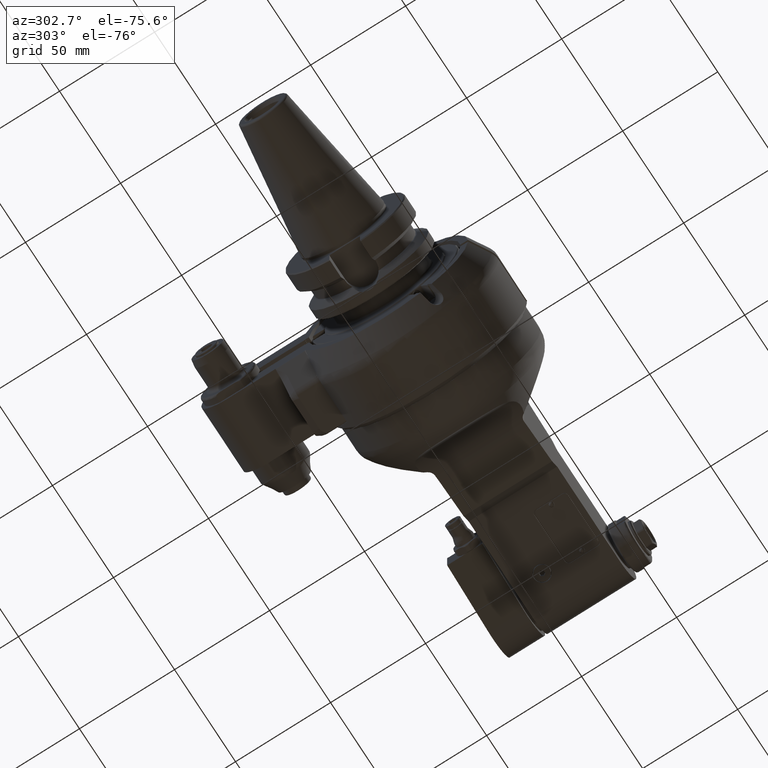
[diagram: clean part render]
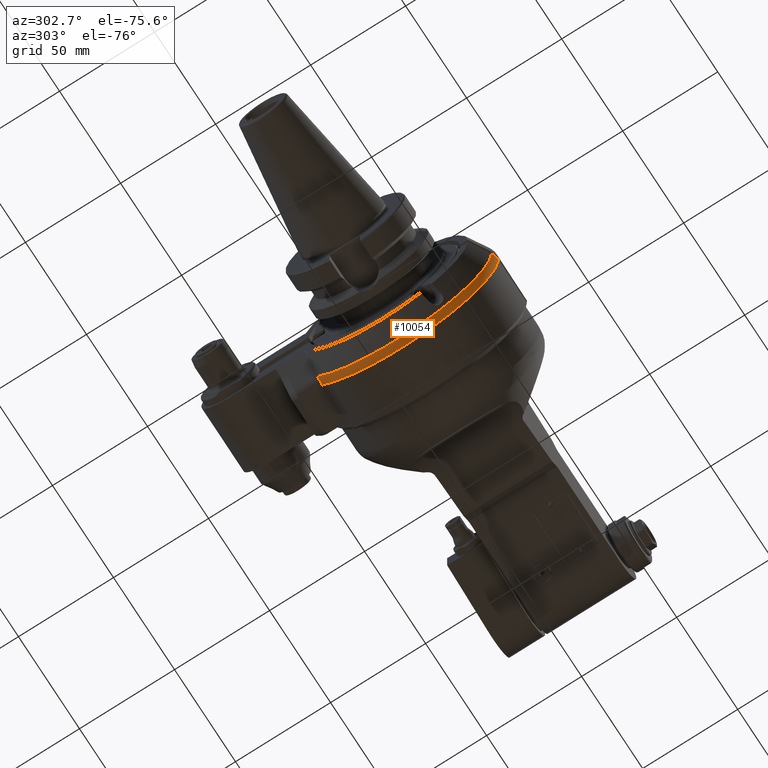
[diagram: same view with one face highlighted and labeled with its STEP entity id]
A machine part, auxiliary view. The second image highlights one B-rep face of the part: STEP entity #10054.
In plain terms, the highlighted toroidal blend (fillet) surface has major radius 43 mm and minor (blend) radius 8 mm.
Its self-contained STEP definition (entity closure, byte-faithful):
#81=TOROIDAL_SURFACE('',#10754,43.,8.);
#733=FACE_OUTER_BOUND('',#1290,.T.);
#1290=EDGE_LOOP('',(#6904,#6905,#6906,#6907));
#1935=CIRCLE('',#10726,51.);
#1950=CIRCLE('',#10751,49.92820323028);
#2379=B_SPLINE_CURVE_WITH_KNOTS('',3,(#14649,#14650,#14651,#14652,#14653,
#14654,#14655,#14656,#14657,#14658),.UNSPECIFIED.,.F.,.F.,(4,2,2,2,4),(2.65541910444733,
2.70524080459426,2.85666458403861,2.97095943510165,3.0852542861647),
 .UNSPECIFIED.);
#2385=B_SPLINE_CURVE_WITH_KNOTS('',3,(#14791,#14792,#14793,#14794,#14795,
#14796,#14797,#14798),.UNSPECIFIED.,.F.,.F.,(4,2,2,4),(7.5173992896467E-10,
0.148073437647891,0.296146874544042,0.396151965412959),.UNSPECIFIED.);
#4172=VERTEX_POINT('',#14646);
#4173=VERTEX_POINT('',#14648);
#4184=VERTEX_POINT('',#14693);
#4196=VERTEX_POINT('',#14780);
#5273=EDGE_CURVE('',#4173,#4172,#2379,.T.);
#5285=EDGE_CURVE('',#4172,#4184,#1935,.T.);
#5302=EDGE_CURVE('',#4184,#4196,#2385,.T.);
#5328=EDGE_CURVE('',#4196,#4173,#1950,.T.);
#6904=ORIENTED_EDGE('',*,*,#5328,.T.);
#6905=ORIENTED_EDGE('',*,*,#5273,.T.);
#6906=ORIENTED_EDGE('',*,*,#5285,.T.);
#6907=ORIENTED_EDGE('',*,*,#5302,.T.);
#10054=ADVANCED_FACE('',(#733),#81,.T.);
#10726=AXIS2_PLACEMENT_3D('',#14695,#11772,#11773);
#10751=AXIS2_PLACEMENT_3D('',#14894,#11839,#11840);
#10754=AXIS2_PLACEMENT_3D('',#14908,#11845,#11846);
#11772=DIRECTION('center_axis',(-1.,0.,0.));
#11773=DIRECTION('ref_axis',(0.,0.818627450980411,-0.574324904998308));
#11839=DIRECTION('center_axis',(1.,0.,0.));
#11840=DIRECTION('ref_axis',(0.,-0.999548602989596,-0.0300431400080999));
#11845=DIRECTION('center_axis',(1.,0.,0.));
#11846=DIRECTION('ref_axis',(0.,-1.,0.));
#14646=CARTESIAN_POINT('',(-37.23205080757,41.75,-29.29057015492));
#14648=CARTESIAN_POINT('',(-41.23205080757,41.75,-27.38180011986));
#14649=CARTESIAN_POINT('Ctrl Pts',(-41.2320508075675,41.75,-27.3818001198577));
#14650=CARTESIAN_POINT('Ctrl Pts',(-41.1084978721799,41.75,-27.5118698927609));
#14651=CARTESIAN_POINT('Ctrl Pts',(-40.9796012581369,41.75,-27.63883358715));
#14652=CARTESIAN_POINT('Ctrl Pts',(-40.4412749376929,41.75,-28.1311886381695));
#14653=CARTESIAN_POINT('Ctrl Pts',(-39.9932266664163,41.75,-28.4521983127449));
#14654=CARTESIAN_POINT('Ctrl Pts',(-39.2119237728328,41.75,-28.8694287521605));
#14655=CARTESIAN_POINT('Ctrl Pts',(-38.8258618631201,41.75,-29.0288082766981));
#14656=CARTESIAN_POINT('Ctrl Pts',(-38.0264941442551,41.75,-29.2396724058848));
#14657=CARTESIAN_POINT('Ctrl Pts',(-37.6130336444468,41.75,-29.290570154915));
#14658=CARTESIAN_POINT('Ctrl Pts',(-37.23205080757,41.75,-29.290570154915));
#14693=CARTESIAN_POINT('',(-37.2320508150874,-50.9779364043201,-1.49999998570621));
#14695=CARTESIAN_POINT('Origin',(-37.23205080757,0.,0.));
#14780=CARTESIAN_POINT('',(-41.2320595617708,-49.9056607292726,-1.50000007595379));
#14791=CARTESIAN_POINT('Ctrl Pts',(-37.2320508150874,-50.9779364038993,
-1.5));
#14792=CARTESIAN_POINT('Ctrl Pts',(-37.7256289390112,-50.9779364034353,
-1.5));
#14793=CARTESIAN_POINT('Ctrl Pts',(-38.2646778846743,-50.9292248693062,
-1.5));
#14794=CARTESIAN_POINT('Ctrl Pts',(-39.3203684112507,-50.7191785472564,
-1.5));
#14795=CARTESIAN_POINT('Ctrl Pts',(-39.8370100654999,-50.5578441661684,
-1.5));
#14796=CARTESIAN_POINT('Ctrl Pts',(-40.6009648918524,-50.2413261612742,
-1.5));
#14797=CARTESIAN_POINT('Ctrl Pts',(-40.9199634449429,-50.0859314086734,
-1.5));
#14798=CARTESIAN_POINT('Ctrl Pts',(-41.2320595629834,-49.905660731372,-1.5));
#14894=CARTESIAN_POINT('Origin',(-41.23205080757,0.,0.));
#14908=CARTESIAN_POINT('Origin',(-37.23205080757,0.,0.));